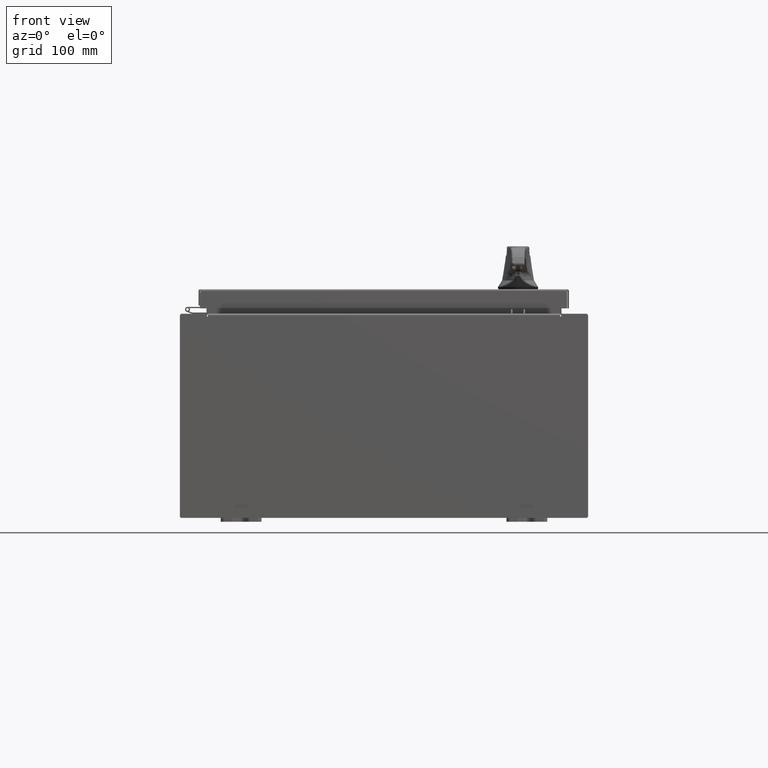
[diagram: clean part render]
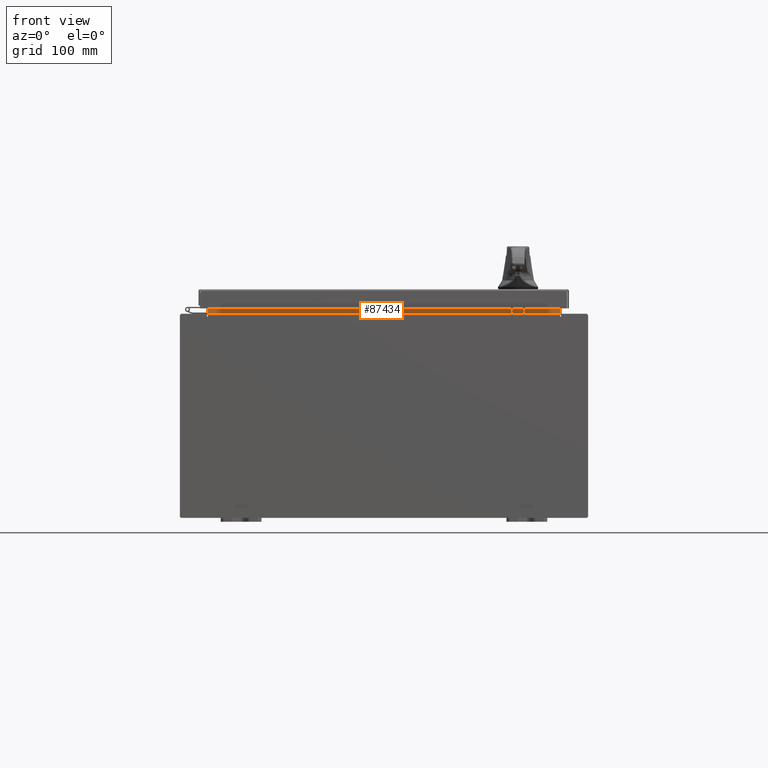
[diagram: same view with one face highlighted and labeled with its STEP entity id]
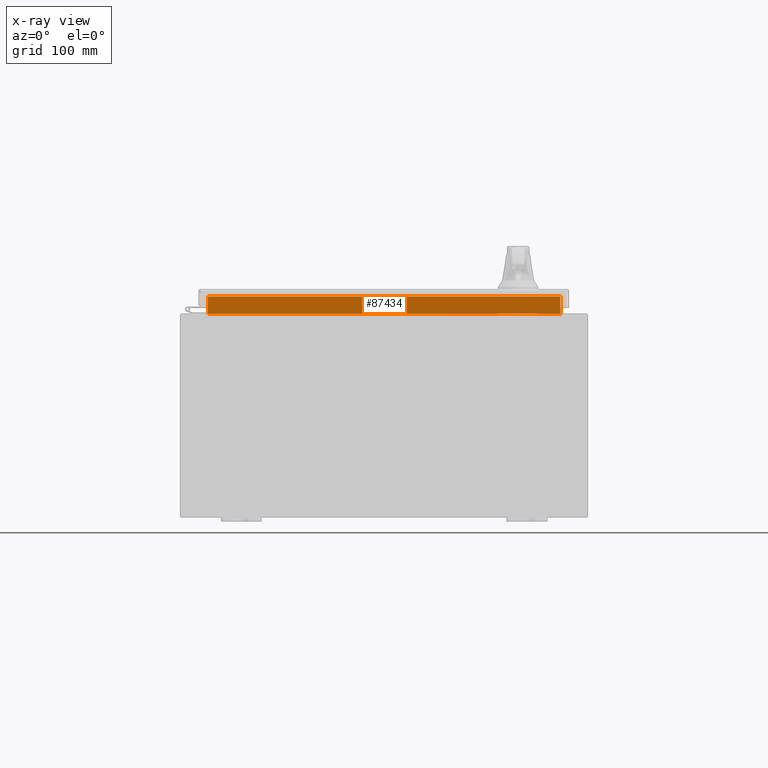
[diagram: x-ray of the same camera — body ghosted, the highlighted face saturated]
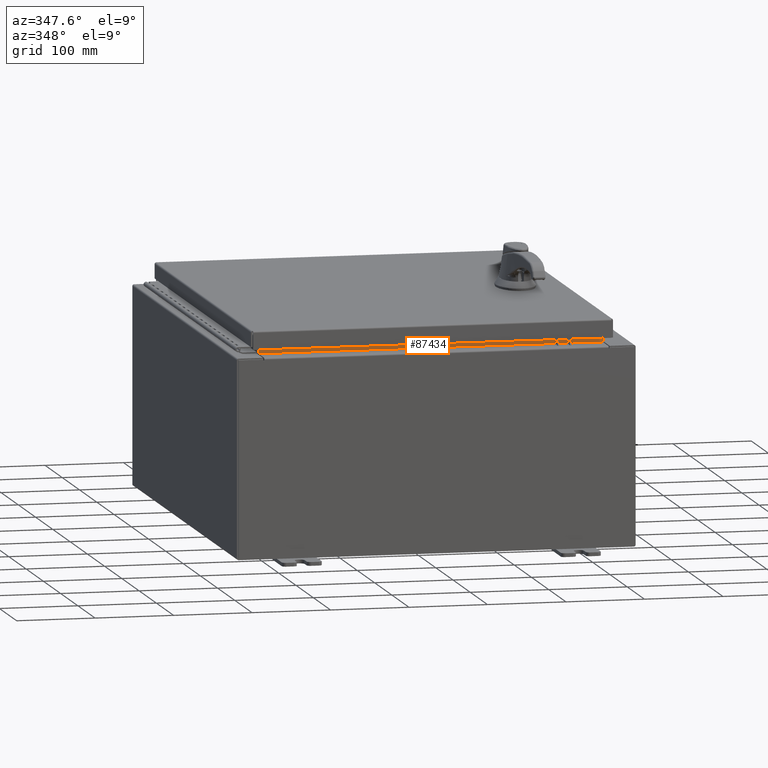
[diagram: same view with one face highlighted and labeled with its STEP entity id]
A machine part, front view. The second image highlights one B-rep face of the part: STEP entity #87434.
The next image is the same camera in x-ray: the body ghosted, the highlighted face saturated — about 0% of this face is hidden behind the body in this view.
A second angle (auxiliary view) of the same face is appended — the face is thin or edge-on in the first view.
In plain terms, the highlighted planar face has unit normal (0, -1, 0).
Its self-contained STEP definition (entity closure, byte-faithful):
#7714 = VECTOR ( 'NONE', #26265, 39.37007874015748100 ) ;
#8226 = VERTEX_POINT ( 'NONE', #26593 ) ;
#12018 = CARTESIAN_POINT ( 'NONE',  ( 8.637200000000000000, -1.300299999999999800, 5.837600000000004600 ) ) ;
#21936 = DIRECTION ( 'NONE',  ( -1.000000000000000000, -0.0000000000000000000, -0.0000000000000000000 ) ) ;
#23717 = CARTESIAN_POINT ( 'NONE',  ( 0.0000000000000000000, -1.300299999999999800, 0.0000000000000000000 ) ) ;
#25346 = VECTOR ( 'NONE', #72070, 39.37007874015748100 ) ;
#26265 = DIRECTION ( 'NONE',  ( -0.0000000000000000000, -0.0000000000000000000, 1.000000000000000000 ) ) ;
#26593 = CARTESIAN_POINT ( 'NONE',  ( -8.637200000000000000, -1.300299999999999800, 5.837600000000004600 ) ) ;
#28108 = LINE ( 'NONE', #89766, #25346 ) ;
#30636 = VERTEX_POINT ( 'NONE', #37817 ) ;
#30750 = CARTESIAN_POINT ( 'NONE',  ( 8.637200000000000000, -1.300299999999999800, 5.837600000000004600 ) ) ;
#30975 = LINE ( 'NONE', #35099, #7714 ) ;
#35099 = CARTESIAN_POINT ( 'NONE',  ( 8.637200000000000000, -1.300299999999999800, 5.925300000000004500 ) ) ;
#36411 = AXIS2_PLACEMENT_3D ( 'NONE', #23717, #102719, #50178 ) ;
#37817 = CARTESIAN_POINT ( 'NONE',  ( 8.637199999999996400, -1.300299999999999800, 5.013000000000003500 ) ) ;
#37873 = CARTESIAN_POINT ( 'NONE',  ( -8.637200000000000000, -1.300299999999999800, 5.013000000000003500 ) ) ;
#41343 = PLANE ( 'NONE',  #36411 ) ;
#46470 = VECTOR ( 'NONE', #81611, 39.37007874015748100 ) ;
#47630 = VERTEX_POINT ( 'NONE', #37873 ) ;
#50178 = DIRECTION ( 'NONE',  ( 0.0000000000000000000, -0.0000000000000000000, 1.000000000000000000 ) ) ;
#52112 = VECTOR ( 'NONE', #21936, 39.37007874015748100 ) ;
#53786 = ORIENTED_EDGE ( 'NONE', *, *, #109621, .F. ) ;
#55524 = EDGE_CURVE ( 'NONE', #8226, #47630, #93088, .T. ) ;
#56643 = CARTESIAN_POINT ( 'NONE',  ( -8.637200000000000000, -1.300299999999999800, 5.000000000000004400 ) ) ;
#64178 = ORIENTED_EDGE ( 'NONE', *, *, #55524, .F. ) ;
#68916 = ORIENTED_EDGE ( 'NONE', *, *, #110466, .F. ) ;
#72070 = DIRECTION ( 'NONE',  ( 1.000000000000000000, 0.0000000000000000000, 0.0000000000000000000 ) ) ;
#81611 = DIRECTION ( 'NONE',  ( -0.0000000000000000000, -0.0000000000000000000, -1.000000000000000000 ) ) ;
#83363 = VERTEX_POINT ( 'NONE', #12018 ) ;
#87129 = EDGE_LOOP ( 'NONE', ( #64178, #97811, #53786, #68916 ) ) ;
#87434 = ADVANCED_FACE ( 'NONE', ( #104142 ), #41343, .T. ) ;
#89766 = CARTESIAN_POINT ( 'NONE',  ( -8.637200000000000000, -1.300299999999999800, 5.013000000000003500 ) ) ;
#93088 = LINE ( 'NONE', #56643, #46470 ) ;
#97811 = ORIENTED_EDGE ( 'NONE', *, *, #105539, .F. ) ;
#98723 = LINE ( 'NONE', #30750, #52112 ) ;
#102719 = DIRECTION ( 'NONE',  ( 0.0000000000000000000, 1.000000000000000000, 0.0000000000000000000 ) ) ;
#104142 = FACE_OUTER_BOUND ( 'NONE', #87129, .T. ) ;
#105539 = EDGE_CURVE ( 'NONE', #83363, #8226, #98723, .T. ) ;
#109621 = EDGE_CURVE ( 'NONE', #30636, #83363, #30975, .T. ) ;
#110466 = EDGE_CURVE ( 'NONE', #47630, #30636, #28108, .T. ) ;